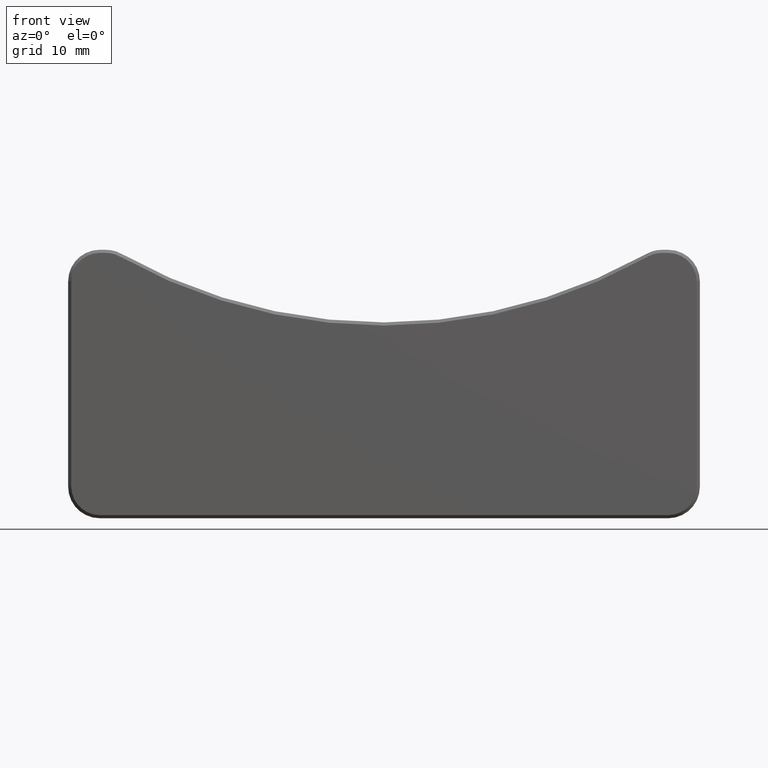
[diagram: clean part render]
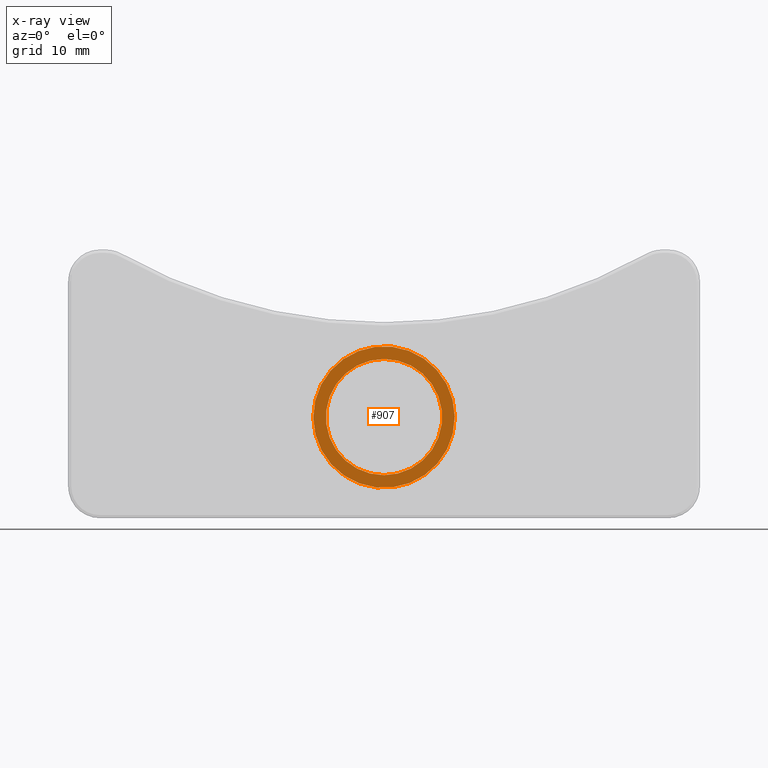
[diagram: x-ray — body ghosted, one internal face saturated and labeled with its STEP entity id]
A machine part, front view, then the same camera in x-ray: the body is ghosted and one INTERNAL B-rep face — a face not visible from any outside direction — is saturated and labeled: STEP entity #907.
In plain terms, the highlighted planar face has unit normal (0, -1, 0).
Its self-contained STEP definition (entity closure, byte-faithful):
#39=FACE_BOUND('',#142,.T.);
#45=PLANE('',#1018);
#79=FACE_OUTER_BOUND('',#141,.T.);
#141=EDGE_LOOP('',(#643));
#142=EDGE_LOOP('',(#644));
#342=CIRCLE('',#1014,11.2);
#346=CIRCLE('',#1019,9.200006235494);
#409=VERTEX_POINT('',#1486);
#412=VERTEX_POINT('',#1494);
#494=EDGE_CURVE('',#409,#409,#342,.T.);
#498=EDGE_CURVE('',#412,#412,#346,.T.);
#643=ORIENTED_EDGE('',*,*,#494,.F.);
#644=ORIENTED_EDGE('',*,*,#498,.F.);
#907=ADVANCED_FACE('',(#79,#39),#45,.T.);
#1014=AXIS2_PLACEMENT_3D('',#1487,#1163,#1164);
#1018=AXIS2_PLACEMENT_3D('',#1493,#1171,#1172);
#1019=AXIS2_PLACEMENT_3D('',#1495,#1173,#1174);
#1163=DIRECTION('center_axis',(0.,1.,0.));
#1164=DIRECTION('ref_axis',(-1.,0.,0.));
#1171=DIRECTION('center_axis',(0.,-1.,0.));
#1172=DIRECTION('ref_axis',(-1.,0.,0.));
#1173=DIRECTION('center_axis',(0.,-1.,0.));
#1174=DIRECTION('ref_axis',(-1.,0.,0.));
#1486=CARTESIAN_POINT('',(11.1996694205001,34.,0.0860515631152723));
#1487=CARTESIAN_POINT('Origin',(0.,34.,0.));
#1493=CARTESIAN_POINT('Origin',(0.,34.,0.));
#1494=CARTESIAN_POINT('',(-6.59379595596934E-14,34.0000000000006,9.2000062354946));
#1495=CARTESIAN_POINT('Origin',(-6.481128374085E-14,34.,2.264855970235E-14));